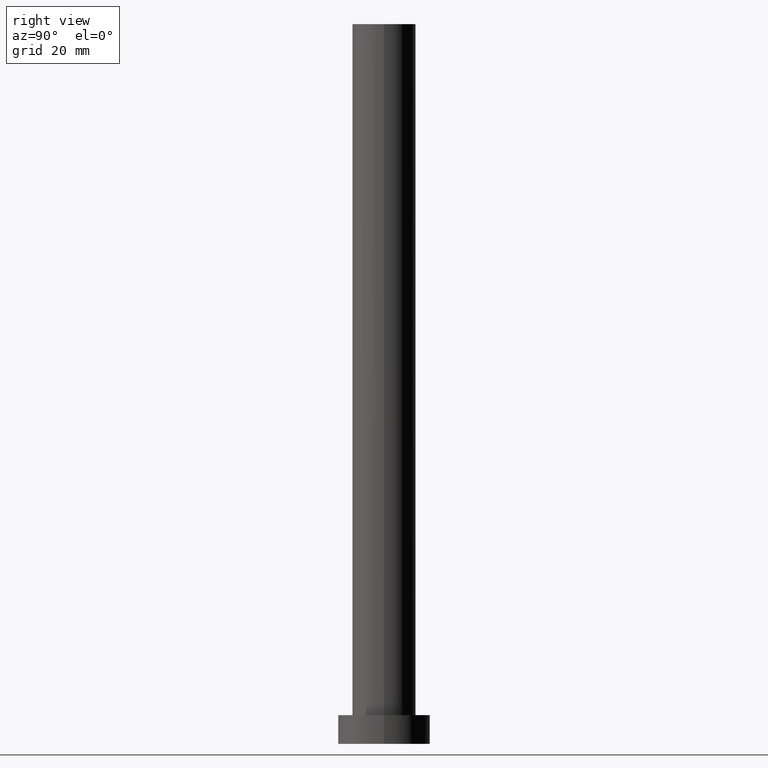
[diagram: clean part render]
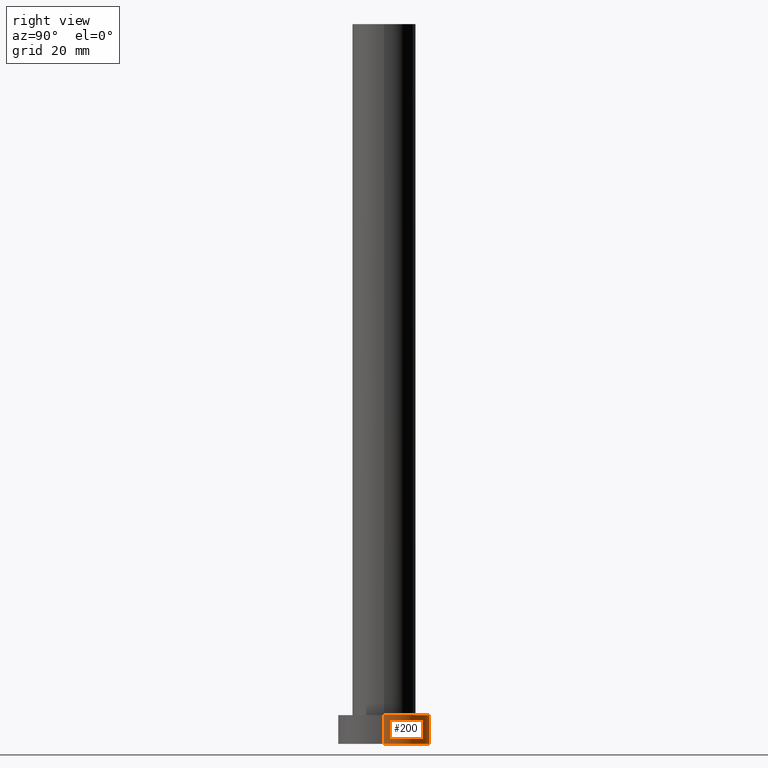
[diagram: same view with one face highlighted and labeled with its STEP entity id]
A machine part, right view. The second image highlights one B-rep face of the part: STEP entity #200.
In plain terms, the highlighted cylindrical surface (partial cylindrical patch) has radius 8 mm, axis along (-0, -0, -1).
Its self-contained STEP definition (entity closure, byte-faithful):
#16 = CARTESIAN_POINT ( 'NONE',  ( 8.000000000000000000, 9.797174393178825657E-16, 5.000000000000000000 ) ) ;
#17 = DIRECTION ( 'NONE',  ( 0.000000000000000000, 0.000000000000000000, 1.000000000000000000 ) ) ;
#26 = EDGE_CURVE ( 'NONE', #246, #114, #101, .T. ) ;
#32 = ORIENTED_EDGE ( 'NONE', *, *, #71, .F. ) ;
#33 = VECTOR ( 'NONE', #85, 1000.000000000000000 ) ;
#43 = CIRCLE ( 'NONE', #212, 8.000000000000000000 ) ;
#47 = DIRECTION ( 'NONE',  ( -1.000000000000000000, 0.000000000000000000, 0.000000000000000000 ) ) ;
#54 = CARTESIAN_POINT ( 'NONE',  ( 0.000000000000000000, 0.000000000000000000, 0.000000000000000000 ) ) ;
#55 = VERTEX_POINT ( 'NONE', #167 ) ;
#57 = CARTESIAN_POINT ( 'NONE',  ( -8.000000000000000000, 0.000000000000000000, 5.000000000000000000 ) ) ;
#59 = CARTESIAN_POINT ( 'NONE',  ( 8.000000000000000000, 9.797174393178825657E-16, 0.000000000000000000 ) ) ;
#68 = FACE_OUTER_BOUND ( 'NONE', #152, .T. ) ;
#71 = EDGE_CURVE ( 'NONE', #55, #218, #73, .T. ) ;
#73 = LINE ( 'NONE', #57, #139 ) ;
#76 = ORIENTED_EDGE ( 'NONE', *, *, #224, .F. ) ;
#85 = DIRECTION ( 'NONE',  ( -0.000000000000000000, -0.000000000000000000, -1.000000000000000000 ) ) ;
#101 = LINE ( 'NONE', #254, #33 ) ;
#114 = VERTEX_POINT ( 'NONE', #59 ) ;
#125 = CYLINDRICAL_SURFACE ( 'NONE', #145, 8.000000000000000000 ) ;
#133 = CARTESIAN_POINT ( 'NONE',  ( 0.000000000000000000, 0.000000000000000000, 5.000000000000000000 ) ) ;
#139 = VECTOR ( 'NONE', #248, 1000.000000000000000 ) ;
#141 = ORIENTED_EDGE ( 'NONE', *, *, #26, .T. ) ;
#144 = EDGE_CURVE ( 'NONE', #114, #218, #237, .T. ) ;
#145 = AXIS2_PLACEMENT_3D ( 'NONE', #238, #243, #47 ) ;
#152 = EDGE_LOOP ( 'NONE', ( #76, #141, #160, #32 ) ) ;
#153 = DIRECTION ( 'NONE',  ( 0.000000000000000000, 0.000000000000000000, 1.000000000000000000 ) ) ;
#160 = ORIENTED_EDGE ( 'NONE', *, *, #144, .T. ) ;
#167 = CARTESIAN_POINT ( 'NONE',  ( -8.000000000000000000, 0.000000000000000000, 5.000000000000000000 ) ) ;
#172 = DIRECTION ( 'NONE',  ( 1.000000000000000000, 0.000000000000000000, 0.000000000000000000 ) ) ;
#200 = ADVANCED_FACE ( 'NONE', ( #68 ), #125, .T. ) ;
#212 = AXIS2_PLACEMENT_3D ( 'NONE', #133, #153, #172 ) ;
#218 = VERTEX_POINT ( 'NONE', #247 ) ;
#224 = EDGE_CURVE ( 'NONE', #246, #55, #43, .T. ) ;
#237 = CIRCLE ( 'NONE', #249, 8.000000000000000000 ) ;
#238 = CARTESIAN_POINT ( 'NONE',  ( 0.000000000000000000, 0.000000000000000000, 5.000000000000000000 ) ) ;
#243 = DIRECTION ( 'NONE',  ( -0.000000000000000000, -0.000000000000000000, -1.000000000000000000 ) ) ;
#246 = VERTEX_POINT ( 'NONE', #16 ) ;
#247 = CARTESIAN_POINT ( 'NONE',  ( -8.000000000000000000, 0.000000000000000000, 0.000000000000000000 ) ) ;
#248 = DIRECTION ( 'NONE',  ( -0.000000000000000000, -0.000000000000000000, -1.000000000000000000 ) ) ;
#249 = AXIS2_PLACEMENT_3D ( 'NONE', #54, #17, #253 ) ;
#253 = DIRECTION ( 'NONE',  ( 1.000000000000000000, 0.000000000000000000, 0.000000000000000000 ) ) ;
#254 = CARTESIAN_POINT ( 'NONE',  ( 8.000000000000000000, 9.797174393178825657E-16, 5.000000000000000000 ) ) ;